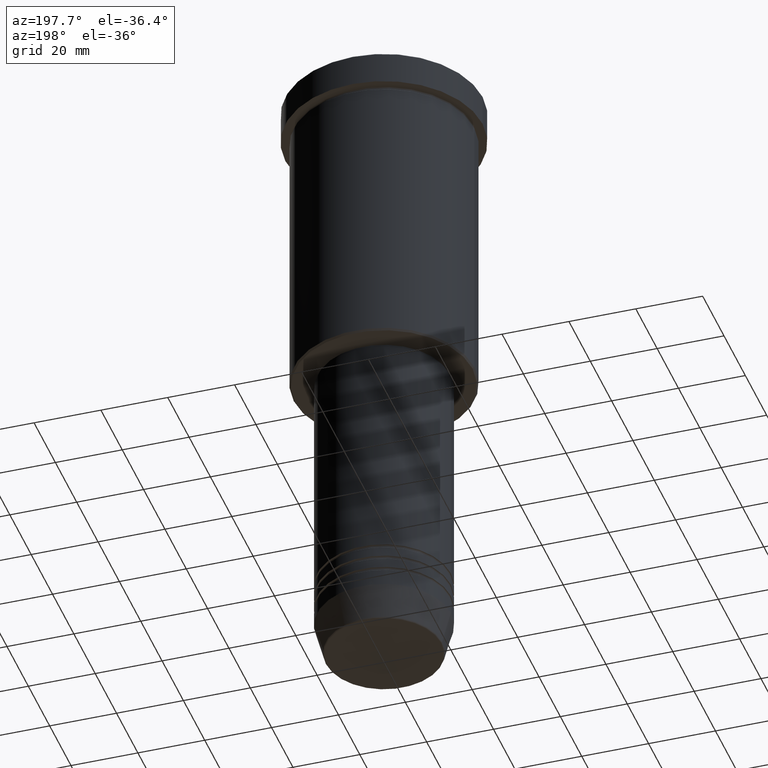
[diagram: clean part render]
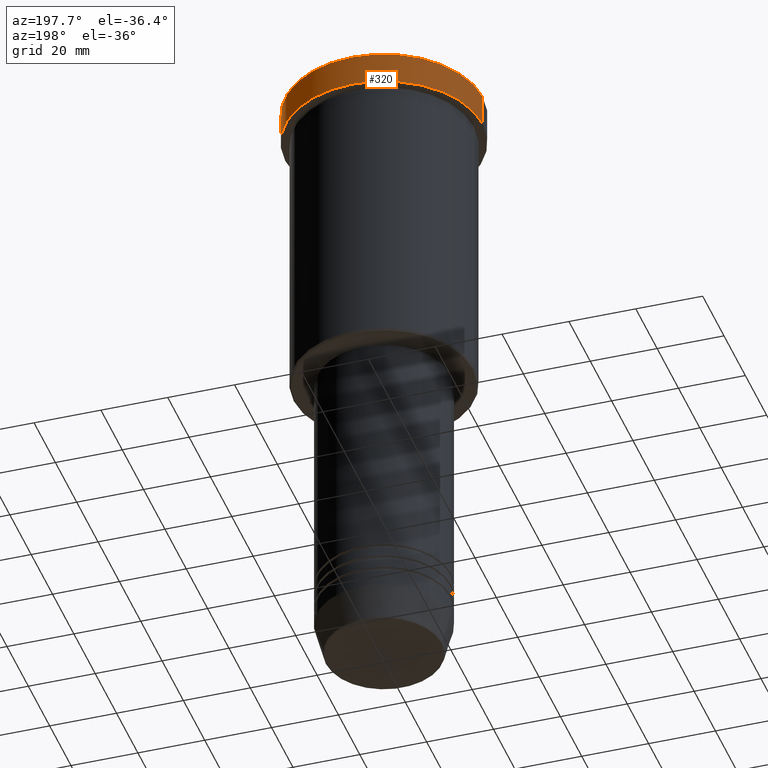
[diagram: same view with one face highlighted and labeled with its STEP entity id]
A machine part, auxiliary view. The second image highlights one B-rep face of the part: STEP entity #320.
In plain terms, the highlighted cylindrical surface (partial cylindrical patch) has radius 29.5 mm, axis along (-0, -0, 1).
Its self-contained STEP definition (entity closure, byte-faithful):
#19 = AXIS2_PLACEMENT_3D ( 'NONE', #760, #1027, #294 ) ;
#21 = CARTESIAN_POINT ( 'NONE',  ( -29.50000000000000000, 3.612708057484691604E-15, -9.999999999999992895 ) ) ;
#26 = FACE_OUTER_BOUND ( 'NONE', #587, .T. ) ;
#50 = EDGE_CURVE ( 'NONE', #799, #1115, #954, .T. ) ;
#53 = LINE ( 'NONE', #411, #317 ) ;
#58 = CARTESIAN_POINT ( 'NONE',  ( 0.000000000000000000, 0.000000000000000000, -0.4999999999999726885 ) ) ;
#63 = CARTESIAN_POINT ( 'NONE',  ( 29.50000000000000000, 0.000000000000000000, -0.4999999999999726885 ) ) ;
#97 = CARTESIAN_POINT ( 'NONE',  ( -29.50000000000000000, 3.612708057484691604E-15, -0.4999999999999726885 ) ) ;
#147 = CIRCLE ( 'NONE', #782, 29.50000000000000000 ) ;
#171 = DIRECTION ( 'NONE',  ( -0.000000000000000000, -0.000000000000000000, 1.000000000000000000 ) ) ;
#187 = VECTOR ( 'NONE', #286, 1000.000000000000000 ) ;
#204 = CARTESIAN_POINT ( 'NONE',  ( 29.50000000000000000, 0.000000000000000000, -9.999999999999992895 ) ) ;
#286 = DIRECTION ( 'NONE',  ( -0.000000000000000000, -0.000000000000000000, 1.000000000000000000 ) ) ;
#294 = DIRECTION ( 'NONE',  ( 1.000000000000000000, 0.000000000000000000, 0.000000000000000000 ) ) ;
#297 = AXIS2_PLACEMENT_3D ( 'NONE', #58, #333, #401 ) ;
#317 = VECTOR ( 'NONE', #1080, 1000.000000000000000 ) ;
#320 = ADVANCED_FACE ( 'NONE', ( #26 ), #738, .T. ) ;
#333 = DIRECTION ( 'NONE',  ( 0.000000000000000000, 0.000000000000000000, -1.000000000000000000 ) ) ;
#351 = EDGE_CURVE ( 'NONE', #936, #926, #147, .T. ) ;
#401 = DIRECTION ( 'NONE',  ( 1.000000000000000000, 0.000000000000000000, 0.000000000000000000 ) ) ;
#411 = CARTESIAN_POINT ( 'NONE',  ( 29.50000000000000000, 0.000000000000000000, 0.000000000000000000 ) ) ;
#432 = CARTESIAN_POINT ( 'NONE',  ( 0.000000000000000000, 0.000000000000000000, -9.999999999999992895 ) ) ;
#458 = ORIENTED_EDGE ( 'NONE', *, *, #825, .T. ) ;
#539 = DIRECTION ( 'NONE',  ( 1.000000000000000000, 0.000000000000000000, 0.000000000000000000 ) ) ;
#570 = LINE ( 'NONE', #855, #187 ) ;
#587 = EDGE_LOOP ( 'NONE', ( #698, #458, #732, #889 ) ) ;
#636 = EDGE_CURVE ( 'NONE', #936, #1115, #53, .T. ) ;
#698 = ORIENTED_EDGE ( 'NONE', *, *, #351, .T. ) ;
#732 = ORIENTED_EDGE ( 'NONE', *, *, #50, .T. ) ;
#738 = CYLINDRICAL_SURFACE ( 'NONE', #19, 29.50000000000000000 ) ;
#760 = CARTESIAN_POINT ( 'NONE',  ( 0.000000000000000000, 0.000000000000000000, 0.000000000000000000 ) ) ;
#782 = AXIS2_PLACEMENT_3D ( 'NONE', #432, #171, #539 ) ;
#799 = VERTEX_POINT ( 'NONE', #97 ) ;
#825 = EDGE_CURVE ( 'NONE', #926, #799, #570, .T. ) ;
#855 = CARTESIAN_POINT ( 'NONE',  ( -29.50000000000000000, 3.612708057484691604E-15, 0.000000000000000000 ) ) ;
#889 = ORIENTED_EDGE ( 'NONE', *, *, #636, .F. ) ;
#926 = VERTEX_POINT ( 'NONE', #21 ) ;
#936 = VERTEX_POINT ( 'NONE', #204 ) ;
#954 = CIRCLE ( 'NONE', #297, 29.50000000000000000 ) ;
#1027 = DIRECTION ( 'NONE',  ( -0.000000000000000000, -0.000000000000000000, 1.000000000000000000 ) ) ;
#1080 = DIRECTION ( 'NONE',  ( -0.000000000000000000, -0.000000000000000000, 1.000000000000000000 ) ) ;
#1115 = VERTEX_POINT ( 'NONE', #63 ) ;